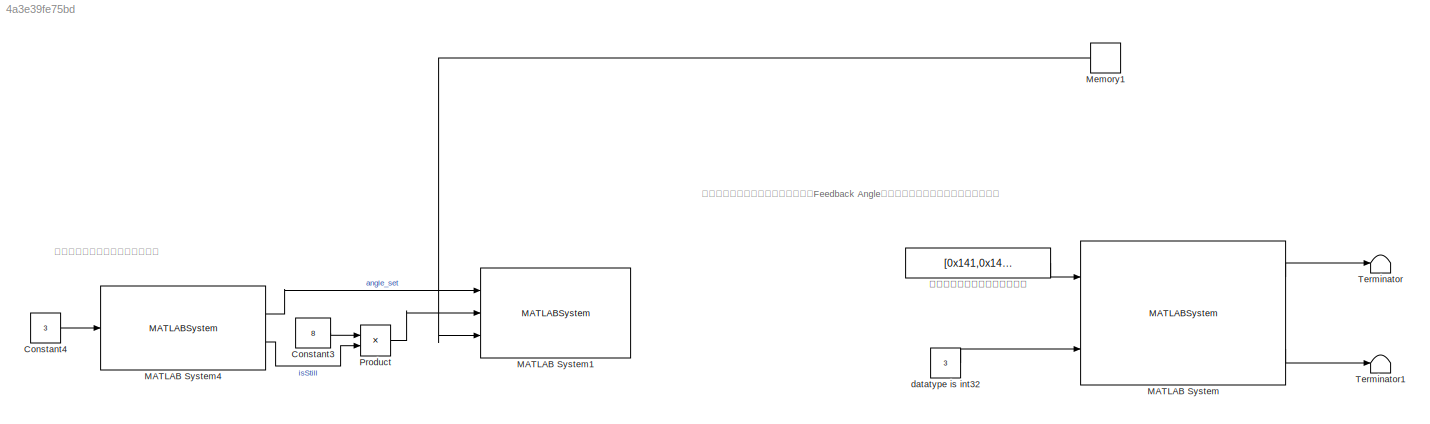
MODEL slx_4a3e39fe75bd
KIND model
CONFIG AbsTol = auto
CONFIG EnableMultiTasking = on
CONFIG FixedStep = 0.004
CONFIG MaxStep = auto
CONFIG MinStep = auto
CONFIG RelTol = 1e-3
CONFIG SampleTimeConstraint = Unconstrained
CONFIG SolverName = FixedStepAuto
CONFIG StartTime = 0.0
CONFIG StopTime = 600
BLOCK [Constant] Constant3
  Value = 8
BLOCK [Constant] Constant4
  Value = 3
BLOCK [MATLABSystem] MATLAB System
  MaskDisplay = disp('CAN_Driver');\nport_label('input',1,'canID_array');\nport_label('input',2,'send_RawData');\nport_label('input',3,'dev_Num');\nport_label('output',1,'recv_ID');\nport_label('output',2,'recv_rawData');\nport_label('output',3,'err');
  MaskType = canSendRecv
  Ports = [3, 3]
  System = canSendRecv
  canPort = can1
BLOCK [MATLABSystem] MATLAB System1
  MaskDisplay = disp('Sgl_posCtr');\nport_label('input',1,'pos');\nport_label('input',2,'speed');\nport_label('input',3,'calFlag');\nport_label('output',1,'cmd');
  MaskType = Sgl_posCtr
  Ports = [3, 1]
  SimulateUsing = Code generation
  System = Sgl_posCtr
BLOCK [MATLABSystem] MATLAB System4
  Amp = 10
  MaskDisplay = disp('squareWave_OP');\nport_label('input',1,'ENNum');\nport_label('output',1,'Tra');\nport_label('output',2,'isStill');
  MaskType = squareWave_OP
  OffsetTime = 0
  Ports = [1, 2]
  SampleTime = 0.004
  SimulateUsing = Code generation
  System = squareWave_OP
  TickTime = 0
  tHigh = 0.5
  tLow = 0.5
BLOCK [Memory] Memory1
  NameLocation = top
BLOCK [Product] Product
  Ports = [2, 1]
BLOCK [Terminator] Terminator
BLOCK [Terminator] Terminator1
BLOCK [Constant] datatype is int32
  OutDataTypeStr = int32
  Value = 3
BLOCK [Constant] 此数组必须包含两个以上的数字
  Value = [0x141,0x142,0x143]
ANNOTATION (root): 注意，如果更换电机编号，还需要到Feedback Angle子函数中更改电机位置零点偏置数值！
ANNOTATION (root): 面对电机输出轴，顺时针旋转为正
LINE Constant3:1 -> Product:1
LINE Constant4:1 -> MATLAB System4:1
LINE MATLAB System4:1 -> MATLAB System1:1
LINE MATLAB System4:2 -> Product:2
LINE MATLAB System:1 -> Terminator:1
LINE MATLAB System:3 -> Terminator1:1
LINE Memory1:1 -> MATLAB System1:3
LINE Product:1 -> MATLAB System1:2
LINE datatype is int32:1 -> MATLAB System:3
LINE 此数组必须包含两个以上的数字:1 -> MATLAB System:1
